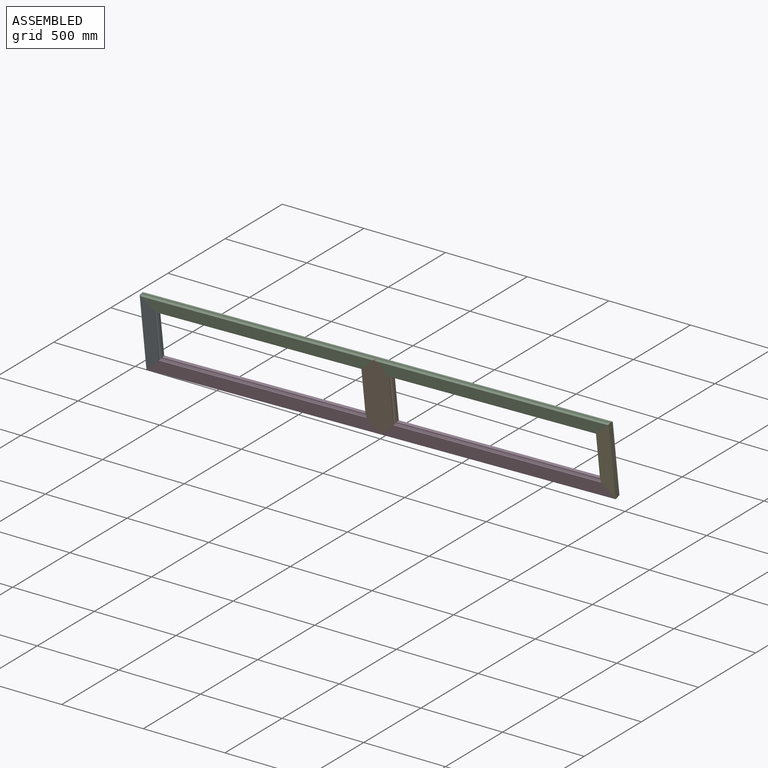
[diagram: assembled view]
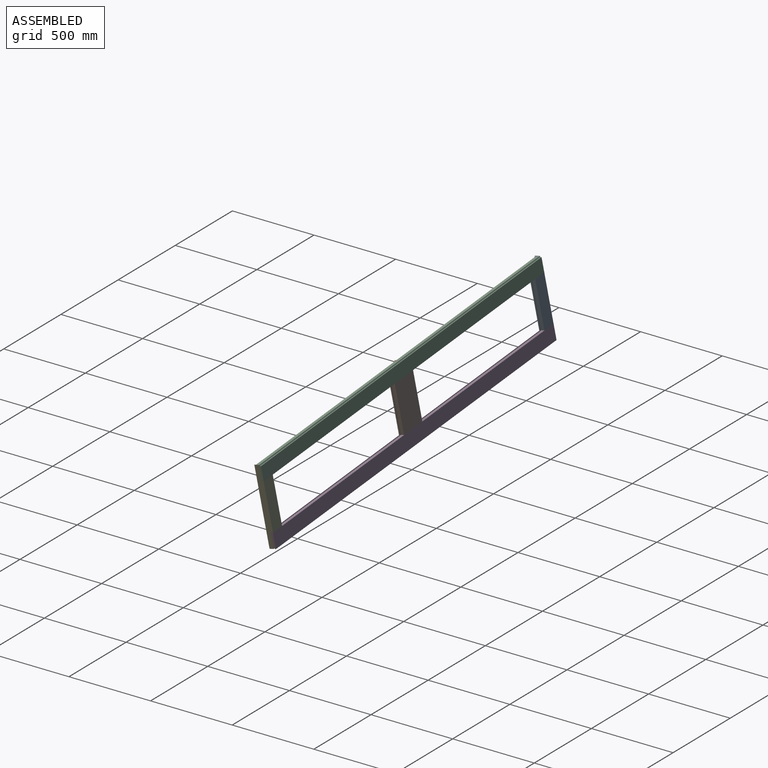
[diagram: assembled view, second angle]
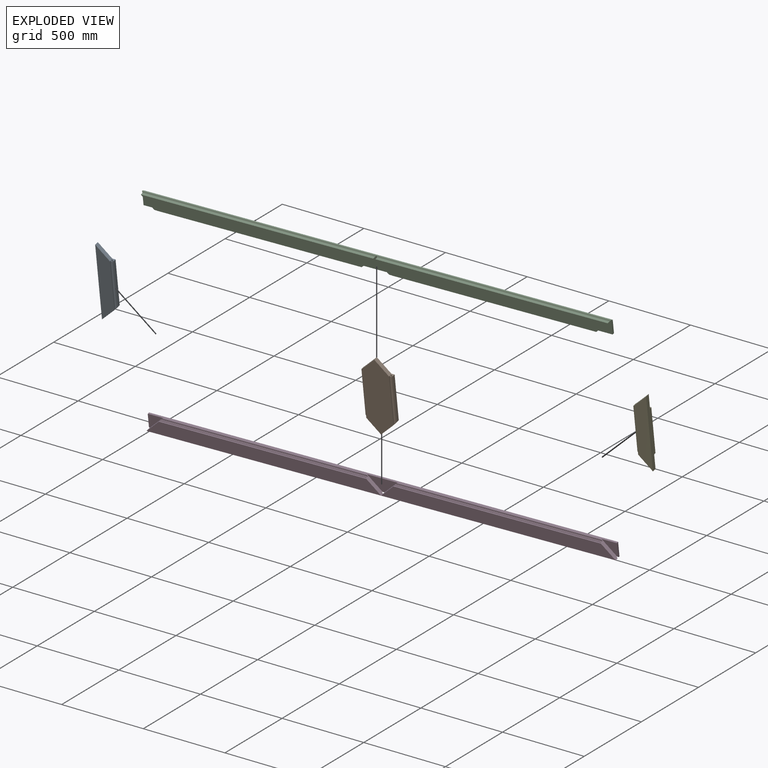
[diagram: exploded view]
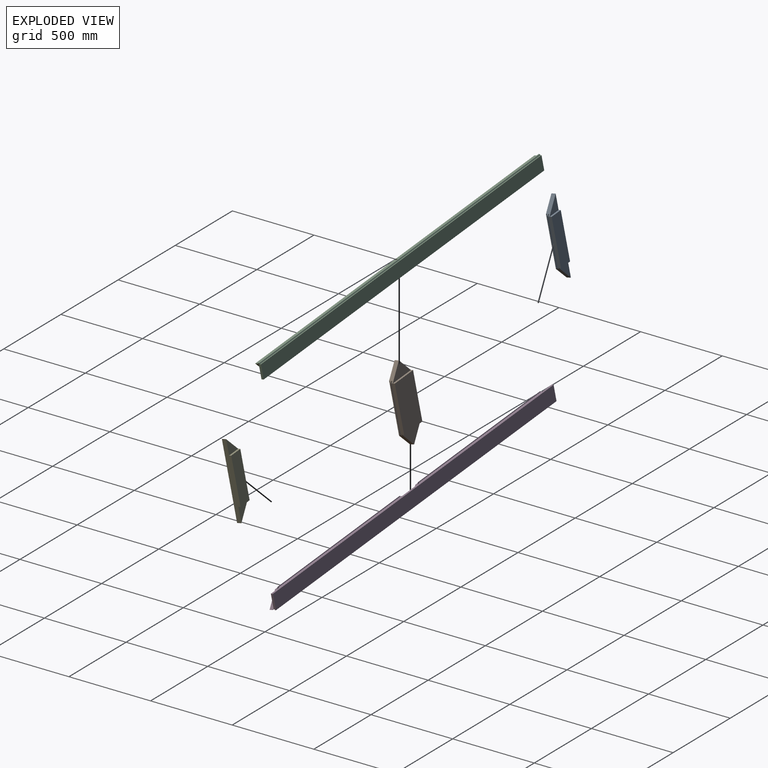
[diagram: exploded view, second angle]
ASSEMBLY  parts=5 mates=11
PART A: 17 faces, bbox 457.2x38.1x88.9 mm
  f0: plane 279.4x19.05mm, normal (0,0,1), area 5322.6mm2, adj f2,f6,f11,f12,f14,f16
  f1: plane 457.2x38.1mm, normal (0,0,-1), area 15161.3mm2, adj f2,f4,f11,f12,f13,f14,f15,f16
  f2: plane 279.4x88.9mm, normal (0,1,0), area 24838.7mm2, adj f0,f1,f14,f16
  f3: plane 279.4x2.05mm, normal (0,0,1), area 572.8mm2, adj f7,f9,f11,f12
  f4: plane 457.2x79.38mm, normal (0,-1,0), area 29989.9mm2, adj f1,f10,f11,f12
  f5: plane 298.45x6.35mm, normal (0,0,1), area 1895.2mm2, adj f6,f7,f11,f12
  f6: plane 298.45x9.53mm, normal (0,-1,0), area 2752mm2, adj f0,f5,f11,f12
  f7: plane 298.45x9.53mm, normal (0,1,0), area 2752mm2, adj f3,f5,f11,f12
  f8: cylinder r=6.35mm len=298.45mm, axis (1,0,0), area 1579.9mm2, adj f9,f10,f11,f12
  f9: cylinder r=6.35mm len=288.93mm, axis (1,0,0), area 1531.9mm2, adj f3,f8,f11,f12
  f10: plane 298.45x6.35mm, normal (0,0,1), area 1895.2mm2, adj f4,f8,f11,f12
  f11: plane 88.9x88.9mm, normal (0.71,0,0.71), area 2993.3mm2, adj f0,f1,f3,f4,f5,f6,f7,f8
  f12: plane 88.9x88.9mm, normal (-0.71,0,0.71), area 2993.3mm2, adj f0,f1,f3,f4,f5,f6,f7,f8
  f13: plane 88.9x88.9mm, normal (0,1,0), area 3951.6mm2, adj f1,f12,f14
  f14: plane 88.9x12.7mm, normal (-1,0,0), area 1129mm2, adj f0,f1,f2,f13
  f15: plane 88.9x88.9mm, normal (0,1,0), area 3951.6mm2, adj f1,f11,f16
  f16: plane 88.9x12.7mm, normal (1,0,0), area 1129mm2, adj f0,f1,f2,f15
PART B: 26 faces, bbox 457.2x38.1x177.8 mm
  f0: plane 279.4x19.05mm, normal (0,0,1), area 5322.6mm2, adj f1,f5,f10,f11,f13,f15
  f1: plane 279.4x177.8mm, normal (0,1,0), area 49677.3mm2, adj f0,f13,f15,f16
  f2: plane 279.4x2.05mm, normal (0,0,1), area 572.8mm2, adj f6,f8,f10,f11
  f3: plane 457.2x158.75mm, normal (0,-1,0), area 59979.7mm2, adj f9,f10,f11,f23,f24,f25
  f4: plane 298.45x6.35mm, normal (0,0,1), area 1895.2mm2, adj f5,f6,f10,f11
  f5: plane 298.45x9.53mm, normal (0,-1,0), area 2752mm2, adj f0,f4,f10,f11
  f6: plane 298.45x9.53mm, normal (0,1,0), area 2752mm2, adj f2,f4,f10,f11
  f7: cylinder r=6.35mm len=298.45mm, axis (1,0,0), area 1579.9mm2, adj f8,f9,f10,f11
  f8: cylinder r=6.35mm len=288.93mm, axis (1,0,0), area 1531.9mm2, adj f2,f7,f10,f11
  f9: plane 298.45x6.35mm, normal (0,0,1), area 1895.2mm2, adj f3,f7,f10,f11
  f10: plane 88.9x88.9mm, normal (0.71,0,0.71), area 2993.3mm2, adj f0,f2,f3,f4,f5,f6,f7,f8
  f11: plane 88.9x88.9mm, normal (-0.71,0,0.71), area 2993.3mm2, adj f0,f2,f3,f4,f5,f6,f7,f8
  f12: plane 177.8x88.9mm, normal (0,1,0), area 7903.2mm2, adj f11,f13,f25
  f13: plane 177.8x12.7mm, normal (-1,0,0), area 2258.1mm2, adj f0,f1,f12,f16
  f14: plane 177.8x88.9mm, normal (0,1,0), area 7903.2mm2, adj f10,f15,f24
  f15: plane 177.8x12.7mm, normal (1,0,0), area 2258.1mm2, adj f0,f1,f14,f16
  f16: plane 279.4x19.05mm, normal (0,0,-1), area 5322.6mm2, adj f1,f13,f15,f19,f24,f25
  f17: plane 279.4x2.05mm, normal (0,0,-1), area 572.8mm2, adj f20,f22,f24,f25
  f18: plane 298.45x6.35mm, normal (0,0,-1), area 1895.2mm2, adj f19,f20,f24,f25
  f19: plane 298.45x9.53mm, normal (0,-1,0), area 2752mm2, adj f16,f18,f24,f25
  f20: plane 298.45x9.53mm, normal (0,1,0), area 2752mm2, adj f17,f18,f24,f25
  f21: cylinder r=6.35mm len=298.45mm, axis (1,0,0), area 1579.9mm2, adj f22,f23,f24,f25
  f22: cylinder r=6.35mm len=288.93mm, axis (1,0,0), area 1531.9mm2, adj f17,f21,f24,f25
  f23: plane 298.45x6.35mm, normal (0,0,-1), area 1895.2mm2, adj f3,f21,f24,f25
  f24: plane 88.9x88.9mm, normal (0.71,0,-0.71), area 2993.3mm2, adj f3,f10,f14,f16,f17,f18,f19,f20
  f25: plane 88.9x88.9mm, normal (-0.71,0,-0.71), area 2993.3mm2, adj f3,f11,f12,f16,f17,f18,f19,f20
PART C: 34 faces, bbox 2743.2x38.1x88.9 mm
  f0: plane 1193.7x2.05mm, normal (0,0,-1), area 2447.4mm2, adj f13,f15,f31,f32
  f1: plane 1193.7x2.05mm, normal (0,0,-1), area 2447.4mm2, adj f14,f16,f27,f30
  f2: plane 1358.8x73.03mm, normal (0,-1,0), area 93893.8mm2, adj f5,f19,f31,f32
  f3: plane 1358.8x73.03mm, normal (0,-1,0), area 93893.8mm2, adj f6,f20,f27,f30
  f4: plane 2743.2x19.05mm, normal (0,0,-1), area 49998.6mm2, adj f9,f10,f21,f23,f24,f27,f28,f29
  f5: plane 1358.8x19.05mm, normal (0,0,1), area 25885.2mm2, adj f2,f7,f31,f32
  f6: plane 1358.8x19.05mm, normal (0,0,1), area 25885.2mm2, adj f3,f8,f27,f30
  f7: plane 1371.5x6.35mm, normal (0,-0.89,0.45), area 9691.9mm2, adj f5,f22,f31,f32
  f8: plane 1371.5x6.35mm, normal (0,-0.89,0.45), area 9691.9mm2, adj f6,f22,f27,f30
  f9: plane 1212.75x9.53mm, normal (0,-1,0), area 11460.7mm2, adj f4,f11,f31,f32
  f10: plane 1212.75x9.53mm, normal (0,-1,0), area 11460.7mm2, adj f4,f12,f27,f30
  f11: plane 1212.75x6.35mm, normal (0,0,-1), area 7701mm2, adj f9,f13,f31,f32
  f12: plane 1212.75x6.35mm, normal (0,0,-1), area 7701mm2, adj f10,f14,f27,f30
  f13: plane 1212.75x9.53mm, normal (0,1,0), area 11460.7mm2, adj f0,f11,f31,f32
  f14: plane 1212.75x9.53mm, normal (0,1,0), area 11460.7mm2, adj f1,f12,f27,f30
  f15: cylinder r=6.35mm len=1203.23mm, axis (1,0,0), area 6455.6mm2, adj f0,f17,f31,f32
  f16: cylinder r=6.35mm len=1203.23mm, axis (1,0,0), area 6455.6mm2, adj f1,f18,f27,f30
  f17: cylinder r=6.35mm len=1212.75mm, axis (1,0,0), area 6503.6mm2, adj f15,f19,f31,f32
  f18: cylinder r=6.35mm len=1212.75mm, axis (1,0,0), area 6503.6mm2, adj f16,f20,f27,f30
  f19: plane 1212.75x6.35mm, normal (0,0,-1), area 7701mm2, adj f2,f17,f31,f32
  f20: plane 1212.75x6.35mm, normal (0,0,-1), area 7701mm2, adj f3,f18,f27,f30
  f21: plane 88.9x12.7mm, normal (1,0,0), area 1078.6mm2, adj f4,f22,f24,f25,f26,f28
  f22: plane 2743.2x6.35mm, normal (0,0,1), area 17418.7mm2, adj f7,f8,f21,f23,f25,f27,f29,f30
  f23: plane 88.9x12.7mm, normal (-1,0,0), area 1078.6mm2, adj f4,f22,f24,f25,f26,f33
  f24: plane 2743.2x82.55mm, normal (0,1,0), area 226451.2mm2, adj f4,f21,f23,f26
  f25: plane 2743.2x6.35mm, normal (0,0.89,0.45), area 19475.4mm2, adj f21,f22,f23,f26
  f26: plane 2743.2x6.35mm, normal (0,0,1), area 17419.3mm2, adj f21,f23,f24,f25
  f27: plane 88.9x88.9mm, normal (0.71,0,-0.71), area 2808mm2, adj f1,f3,f4,f6,f8,f10,f12,f14
  f28: plane 88.9x88.9mm, normal (0,-1,0), area 3951.6mm2, adj f4,f21,f27
  f29: plane 178x88.9mm, normal (0,-1,0), area 7920.9mm2, adj f4,f22,f30,f31
  f30: plane 88.9x88.9mm, normal (-0.71,0,-0.71), area 2808mm2, adj f1,f3,f4,f6,f8,f10,f12,f14
  f31: plane 88.9x88.9mm, normal (0.71,0,-0.71), area 2808mm2, adj f0,f2,f4,f5,f7,f9,f11,f13
  f32: plane 88.9x88.9mm, normal (-0.71,0,-0.71), area 2808mm2, adj f0,f2,f4,f5,f7,f9,f11,f13
  f33: plane 88.9x88.9mm, normal (0,-1,0), area 3951.6mm2, adj f4,f23,f32
PART D: 34 faces, bbox 2743.2x38.1x88.9 mm
  f0: plane 1193.7x2.05mm, normal (0,0,1), area 2447.4mm2, adj f13,f17,f30,f32
  f1: plane 1193.7x2.05mm, normal (0,0,1), area 2447.4mm2, adj f12,f16,f27,f29
  f2: plane 1371.5x79.38mm, normal (0,-1,0), area 102562.5mm2, adj f4,f18,f27,f29
  f3: plane 1371.5x79.38mm, normal (0,-1,0), area 102562.5mm2, adj f19,f21,f30,f32
  f4: plane 1371.5x19.05mm, normal (0,0,-1), area 26127.1mm2, adj f2,f6,f27,f29
  f5: plane 2743.2x6.35mm, normal (0,0,-1), area 17338mm2, adj f6,f7,f20,f23,f26,f27,f28,f29
  f6: plane 1371.5x6.35mm, normal (0,0.89,-0.45), area 9691.9mm2, adj f4,f5,f27,f29
  f7: plane 1371.5x6.35mm, normal (0,0.89,-0.45), area 9691.9mm2, adj f5,f21,f30,f32
  f8: plane 1212.75x6.35mm, normal (0,0,1), area 7701mm2, adj f10,f12,f27,f29
  f9: plane 1212.75x6.35mm, normal (0,0,1), area 7701mm2, adj f11,f13,f30,f32
  f10: plane 1212.75x9.53mm, normal (0,-1,0), area 11460.7mm2, adj f8,f22,f27,f29
  f11: plane 1212.75x9.53mm, normal (0,-1,0), area 11460.7mm2, adj f9,f22,f30,f32
  f12: plane 1212.75x9.53mm, normal (0,1,0), area 11460.7mm2, adj f1,f8,f27,f29
  f13: plane 1212.75x9.53mm, normal (0,1,0), area 11460.7mm2, adj f0,f9,f30,f32
  f14: cylinder r=6.35mm len=1212.75mm, axis (1,0,0), area 6503.6mm2, adj f16,f18,f27,f29
  f15: cylinder r=6.35mm len=1212.75mm, axis (1,0,0), area 6503.6mm2, adj f17,f19,f30,f32
  f16: cylinder r=6.35mm len=1203.23mm, axis (1,0,0), area 6455.6mm2, adj f1,f14,f27,f29
  f17: cylinder r=6.35mm len=1203.23mm, axis (1,0,0), area 6455.6mm2, adj f0,f15,f30,f32
  f18: plane 1212.75x6.35mm, normal (0,0,1), area 7701mm2, adj f2,f14,f27,f29
  f19: plane 1212.75x6.35mm, normal (0,0,1), area 7701mm2, adj f3,f15,f30,f32
  f20: plane 88.9x12.7mm, normal (1,0,0), area 1098.8mm2, adj f5,f22,f24,f25,f26,f28
  f21: plane 1371.5x19.05mm, normal (0,0,-1), area 26127.1mm2, adj f3,f7,f30,f32
  f22: plane 2743.2x19.05mm, normal (0,0,1), area 49998.6mm2, adj f10,f11,f20,f23,f25,f27,f28,f29
  f23: plane 88.9x12.7mm, normal (-1,0,0), area 1098.8mm2, adj f5,f22,f24,f25,f26,f33
  f24: plane 2743.2x6.35mm, normal (0,0,-1), area 17419.3mm2, adj f20,f23,f25,f26
  f25: plane 2743.2x88.9mm, normal (0,1,0), area 243870.5mm2, adj f20,f22,f23,f24
  f26: plane 2743.2x6.35mm, normal (0,-0.89,-0.45), area 19475.4mm2, adj f5,f20,f23,f24
  f27: plane 88.9x88.9mm, normal (0.71,0,0.71), area 2950.6mm2, adj f1,f2,f4,f5,f6,f8,f10,f12
  f28: plane 88.9x82.55mm, normal (0,-1,0), area 3931.4mm2, adj f5,f20,f22,f27
  f29: plane 88.9x88.9mm, normal (-0.71,0,0.71), area 2950.6mm2, adj f1,f2,f4,f5,f6,f8,f10,f12
  f30: plane 88.9x88.9mm, normal (0.71,0,0.71), area 2950.6mm2, adj f0,f3,f5,f7,f9,f11,f13,f15
  f31: plane 178x82.55mm, normal (0,-1,0), area 7879.3mm2, adj f5,f22,f29,f30
  f32: plane 88.9x88.9mm, normal (-0.71,0,0.71), area 2950.6mm2, adj f0,f3,f5,f7,f9,f11,f13,f15
  f33: plane 88.9x82.55mm, normal (0,-1,0), area 3931.4mm2, adj f5,f22,f23,f32
PART E: same geometry as A
PLACE A rot(axis=(0.06,0.99,0.12),92.2deg) t=(-1336.19,-313.08,0.85)mm
PLACE B rot(axis=(0.13,-0.99,-0.06),88.9deg) t=(-57,-221.04,-27.17)mm
PLACE C rot(axis=(0.92,0.14,0.35),11.3deg) t=(-6.43,-250.99,152.9)mm
PLACE D rot(axis=(0.92,0.14,0.35),11.3deg) t=(-19.12,-184.72,-209.17)mm
PLACE E rot(axis=(0.13,-0.99,-0.06),88.9deg) t=(1310.64,-122.64,-57.12)mm
MATE planar A.f11 <-> D.f32  axis (0.68,0.18,-0.71) through (-1346.15,-266.97,-180.4)mm
MATE planar D.f33 <-> A.f15  axis (0.07,-0.98,-0.18) through (-1358.34,-258.79,-160.4)mm
MATE planar B.f12 <-> D.f31  axis (-0.07,0.98,0.18) through (-20.21,-162.46,-189.99)mm
MATE planar C.f32 <-> A.f12  axis (-0.73,0.08,-0.68) through (-1330.82,-333.39,184.38)mm
MATE planar D.f29 <-> B.f25  axis (-0.68,-0.18,0.71) through (22.27,-168.76,-209.84)mm
MATE planar D.f27 <-> E.f12  axis (0.73,-0.08,0.68) through (1305.47,-76.43,-237.95)mm
MATE planar C.f33 <-> A.f13  axis (0.07,-0.98,-0.18) through (-1346.82,-319.69,172.26)mm
MATE planar D.f28 <-> E.f13  axis (0.07,-0.98,-0.18) through (1317.75,-66.25,-219.01)mm
MATE planar D.f22 <-> B.f13  axis (0.03,-0.18,0.98) through (-19.51,-164.41,-160.22)mm
MATE planar A.f14 <-> C.f4  axis (0.03,-0.18,0.98) through (-1333.49,-307.06,143.96)mm
MATE planar E.f14 <-> D.f22  axis (-0.03,0.18,-0.98) through (1303.71,-66.35,-188.68)mm
